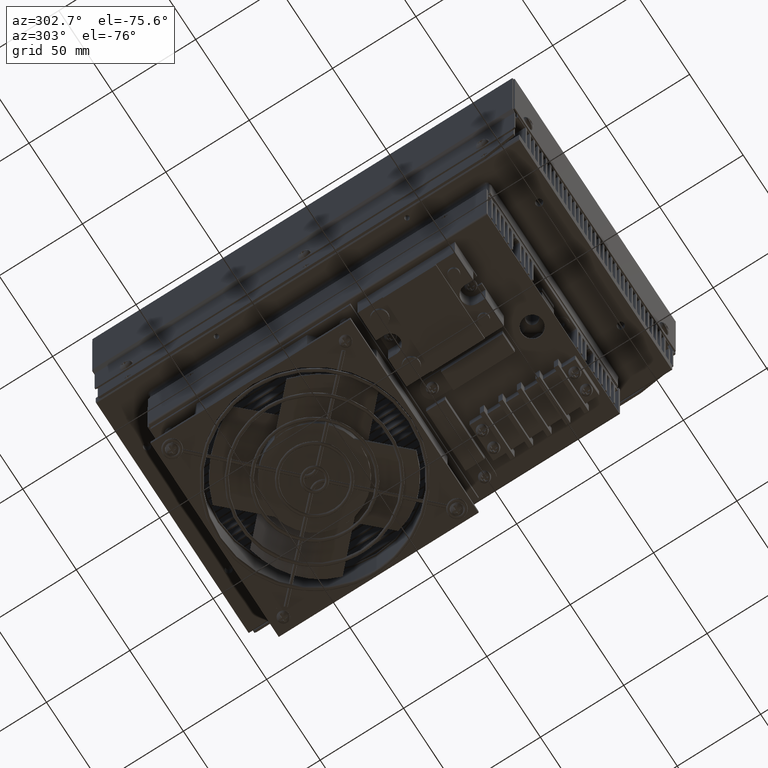
[diagram: clean part render]
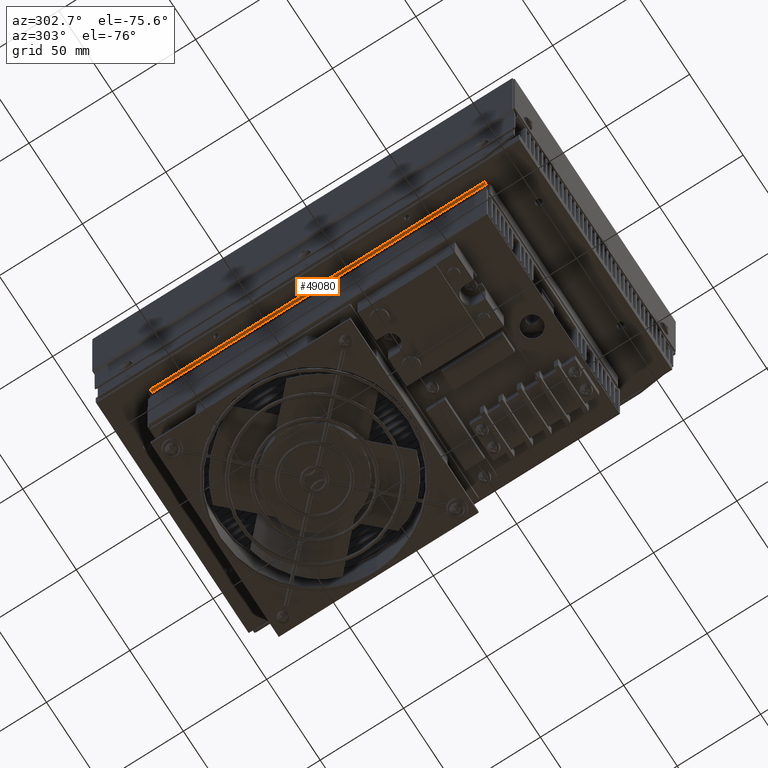
[diagram: same view with one face highlighted and labeled with its STEP entity id]
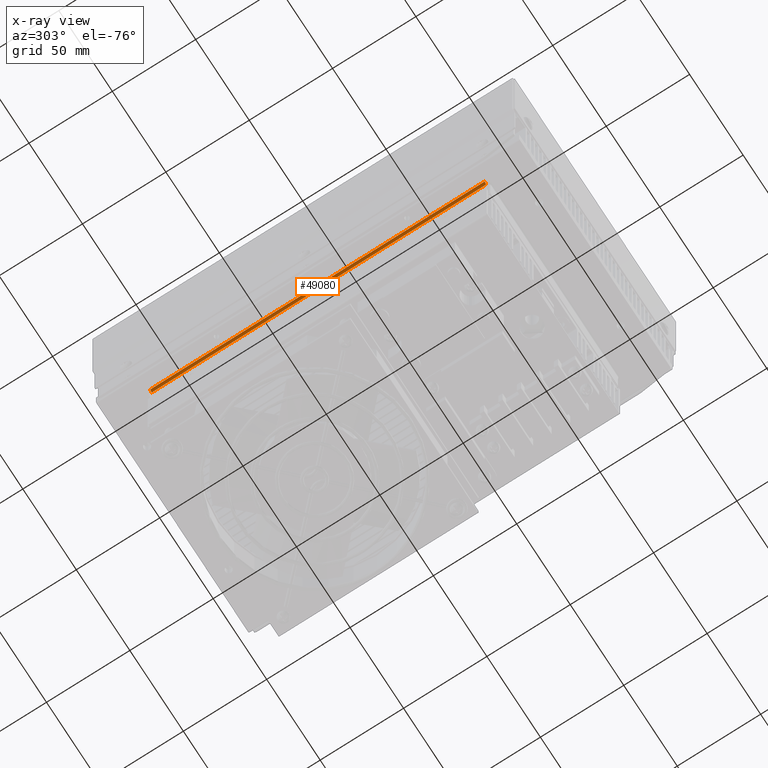
[diagram: x-ray of the same camera — body ghosted, the highlighted face saturated]
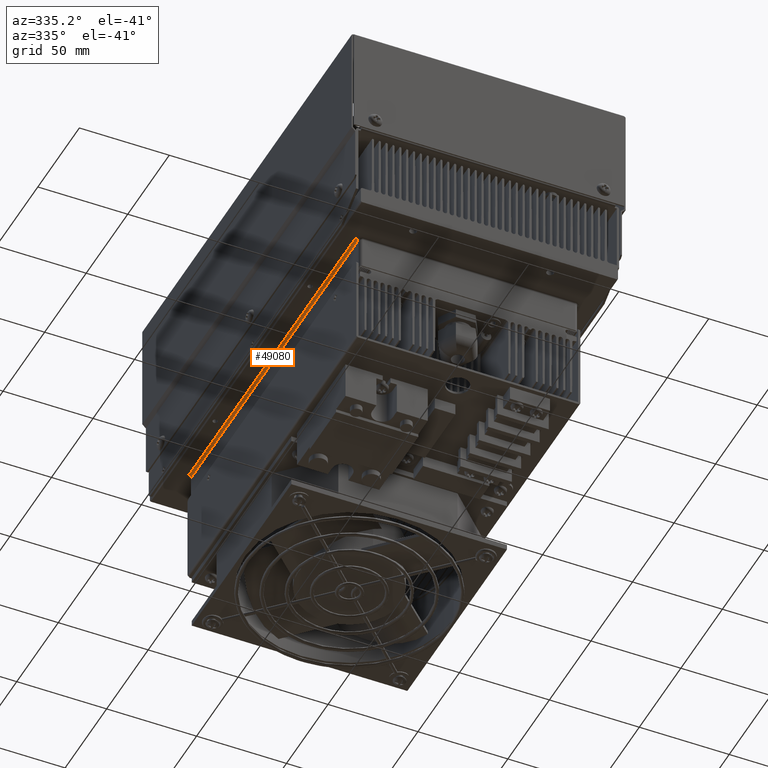
[diagram: same view with one face highlighted and labeled with its STEP entity id]
A machine part, auxiliary view. The second image highlights one B-rep face of the part: STEP entity #49080.
The next image is the same camera in x-ray: the body ghosted, the highlighted face saturated — about 0% of this face is hidden behind the body in this view.
A second angle (auxiliary view) of the same face is appended — the face is thin or edge-on in the first view.
In plain terms, the highlighted cylindrical surface (edge-blend (fillet) strip) has radius 1.7015 mm, axis along (0, -1, 0).
Its self-contained STEP definition (entity closure, byte-faithful):
#1908 = VERTEX_POINT ( 'NONE', #48718 ) ;
#2771 = CARTESIAN_POINT ( 'NONE',  ( -1.398810903212186000, -3.604329553803412800, 4.921838680401527300 ) ) ;
#6936 = VECTOR ( 'NONE', #17793, 39.37007874015748100 ) ;
#17793 = DIRECTION ( 'NONE',  ( 0.0000000000000000000, 1.000000000000000000, -0.0000000000000000000 ) ) ;
#19719 = DIRECTION ( 'NONE',  ( -0.0000000000000000000, 1.000000000000000000, -0.0000000000000000000 ) ) ;
#22062 = LINE ( 'NONE', #44118, #81011 ) ;
#31052 = CARTESIAN_POINT ( 'NONE',  ( -1.390688716131870400, -12.50432955380341600, 4.988333312979754000 ) ) ;
#33152 = CARTESIAN_POINT ( 'NONE',  ( -1.398810903212186000, -4.604329553803412800, 4.921838680401527300 ) ) ;
#35762 = EDGE_CURVE ( 'NONE', #89367, #59245, #65917, .T. ) ;
#39066 = EDGE_LOOP ( 'NONE', ( #91749, #56405, #40181, #60785 ) ) ;
#40181 = ORIENTED_EDGE ( 'NONE', *, *, #72070, .F. ) ;
#40304 = AXIS2_PLACEMENT_3D ( 'NONE', #65821, #19719, #73469 ) ;
#40891 = DIRECTION ( 'NONE',  ( 0.0000000000000000000, 0.0000000000000000000, -1.000000000000000000 ) ) ;
#44118 = CARTESIAN_POINT ( 'NONE',  ( -1.390688716131870000, -3.604329553803412800, 4.988333312979754000 ) ) ;
#46766 = AXIS2_PLACEMENT_3D ( 'NONE', #33152, #86973, #40891 ) ;
#48505 = CIRCLE ( 'NONE', #46766, 0.06698885045051218600 ) ;
#48718 = CARTESIAN_POINT ( 'NONE',  ( -1.390688716131870400, -4.604329553803412800, 4.988333312979754000 ) ) ;
#48864 = DIRECTION ( 'NONE',  ( 0.0000000000000000000, 0.0000000000000000000, -1.000000000000000000 ) ) ;
#49080 = ADVANCED_FACE ( 'NONE', ( #56675 ), #72255, .F. ) ;
#56405 = ORIENTED_EDGE ( 'NONE', *, *, #35762, .F. ) ;
#56675 = FACE_OUTER_BOUND ( 'NONE', #39066, .T. ) ;
#59245 = VERTEX_POINT ( 'NONE', #86272 ) ;
#60560 = DIRECTION ( 'NONE',  ( 0.0000000000000000000, -1.000000000000000000, 0.0000000000000000000 ) ) ;
#60785 = ORIENTED_EDGE ( 'NONE', *, *, #80750, .F. ) ;
#62977 = CARTESIAN_POINT ( 'NONE',  ( -1.333385257072918100, -12.50432955380341600, 4.936225859136092400 ) ) ;
#63842 = CARTESIAN_POINT ( 'NONE',  ( -1.333385257072918100, -12.89932955380341500, 4.936225859136092400 ) ) ;
#64334 = DIRECTION ( 'NONE',  ( 0.0000000000000000000, -1.000000000000000000, 0.0000000000000000000 ) ) ;
#65821 = CARTESIAN_POINT ( 'NONE',  ( -1.398810903212186000, -12.50432955380341600, 4.921838680401527300 ) ) ;
#65917 = LINE ( 'NONE', #63842, #6936 ) ;
#72070 = EDGE_CURVE ( 'NONE', #97308, #89367, #83545, .T. ) ;
#72255 = CYLINDRICAL_SURFACE ( 'NONE', #99813, 0.06698885045051218600 ) ;
#73469 = DIRECTION ( 'NONE',  ( -4.078063700589111800E-015, 0.0000000000000000000, -1.000000000000000000 ) ) ;
#80750 = EDGE_CURVE ( 'NONE', #1908, #97308, #22062, .T. ) ;
#81011 = VECTOR ( 'NONE', #60560, 39.37007874015748100 ) ;
#83545 = CIRCLE ( 'NONE', #40304, 0.06698885045051218600 ) ;
#86272 = CARTESIAN_POINT ( 'NONE',  ( -1.333385257072918100, -4.604329553803412800, 4.936225859136092400 ) ) ;
#86973 = DIRECTION ( 'NONE',  ( 0.0000000000000000000, -1.000000000000000000, 0.0000000000000000000 ) ) ;
#89367 = VERTEX_POINT ( 'NONE', #62977 ) ;
#90906 = EDGE_CURVE ( 'NONE', #59245, #1908, #48505, .T. ) ;
#91749 = ORIENTED_EDGE ( 'NONE', *, *, #90906, .F. ) ;
#97308 = VERTEX_POINT ( 'NONE', #31052 ) ;
#99813 = AXIS2_PLACEMENT_3D ( 'NONE', #2771, #64334, #48864 ) ;